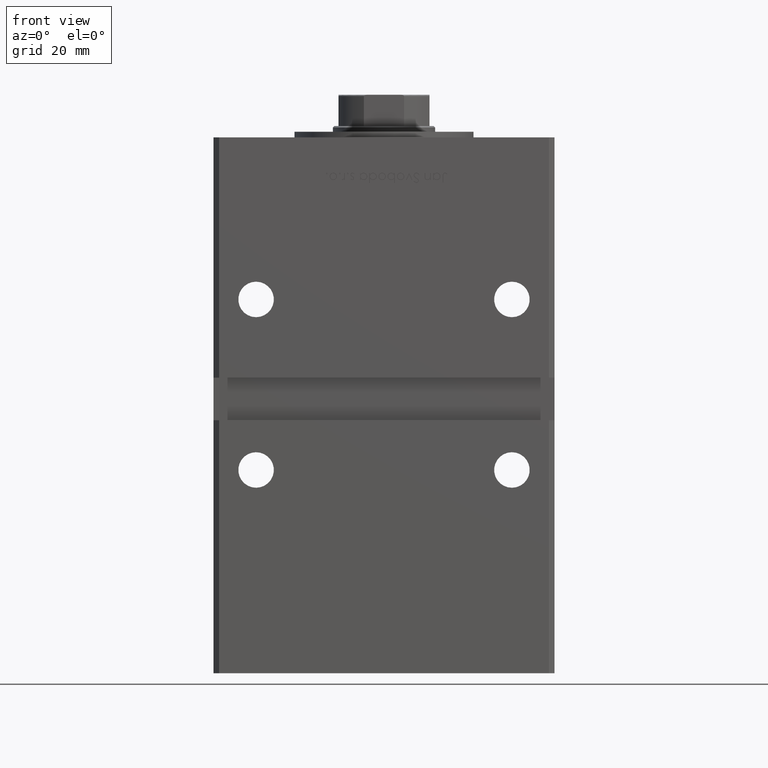
[diagram: clean part render]
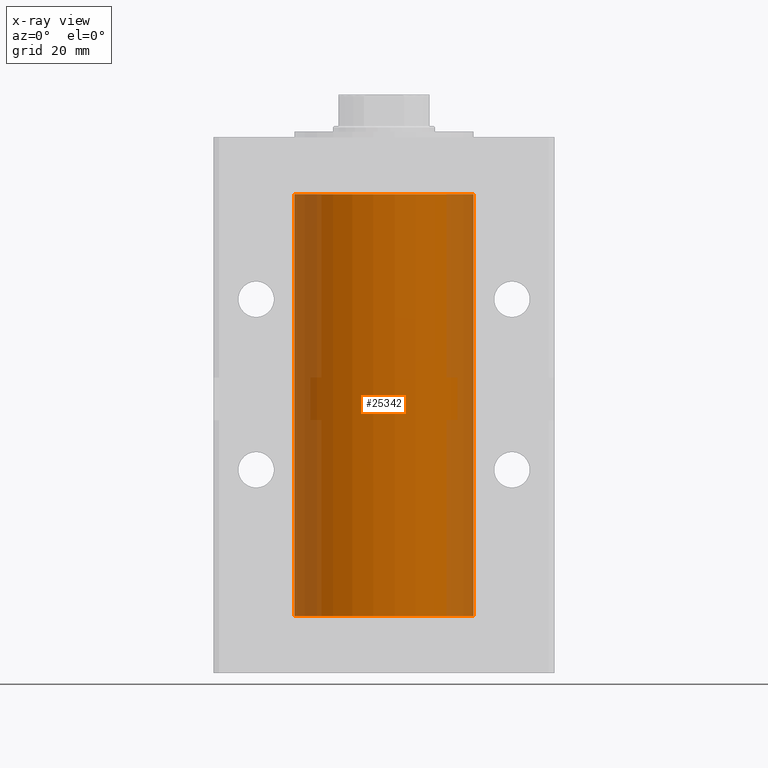
[diagram: x-ray — body ghosted, one internal face saturated and labeled with its STEP entity id]
A machine part, front view, then the same camera in x-ray: the body is ghosted and one INTERNAL B-rep face — a face not visible from any outside direction — is saturated and labeled: STEP entity #25342.
In plain terms, the highlighted cylindrical surface (partial cylindrical patch) has radius 31.5 mm, axis along (-0, -0, -1).
Its self-contained STEP definition (entity closure, byte-faithful):
#1123 = LINE ( 'NONE', #49970, #50641 ) ;
#2420 = DIRECTION ( 'NONE',  ( -0.000000000000000000, -0.000000000000000000, -1.000000000000000000 ) ) ;
#3649 = VECTOR ( 'NONE', #2420, 1000.000000000000000 ) ;
#4519 = DIRECTION ( 'NONE',  ( -0.000000000000000000, -0.000000000000000000, -1.000000000000000000 ) ) ;
#4679 = ORIENTED_EDGE ( 'NONE', *, *, #39320, .T. ) ;
#4877 = CARTESIAN_POINT ( 'NONE',  ( 0.000000000000000000, 0.000000000000000000, 0.000000000000000000 ) ) ;
#6239 = CIRCLE ( 'NONE', #52568, 31.50000000000000000 ) ;
#8638 = DIRECTION ( 'NONE',  ( 1.000000000000000000, 0.000000000000000000, 0.000000000000000000 ) ) ;
#8768 = EDGE_CURVE ( 'NONE', #26344, #41270, #1123, .T. ) ;
#11009 = EDGE_CURVE ( 'NONE', #52326, #26301, #34899, .T. ) ;
#13212 = DIRECTION ( 'NONE',  ( -0.000000000000000000, 0.000000000000000000, 1.000000000000000000 ) ) ;
#15736 = AXIS2_PLACEMENT_3D ( 'NONE', #4877, #36563, #52953 ) ;
#17375 = DIRECTION ( 'NONE',  ( -1.000000000000000000, 0.000000000000000000, 0.000000000000000000 ) ) ;
#19510 = ORIENTED_EDGE ( 'NONE', *, *, #11009, .T. ) ;
#21010 = CARTESIAN_POINT ( 'NONE',  ( 0.000000000000000000, 0.000000000000000000, 148.5000000000000000 ) ) ;
#21438 = CARTESIAN_POINT ( 'NONE',  ( 31.50000000000000000, 3.857637417314162689E-15, 0.000000000000000000 ) ) ;
#24679 = CARTESIAN_POINT ( 'NONE',  ( 0.000000000000000000, 0.000000000000000000, 148.5000000000000000 ) ) ;
#24948 = CYLINDRICAL_SURFACE ( 'NONE', #52230, 31.50000000000000000 ) ;
#25342 = ADVANCED_FACE ( 'NONE', ( #45828 ), #24948, .F. ) ;
#26301 = VERTEX_POINT ( 'NONE', #21438 ) ;
#26344 = VERTEX_POINT ( 'NONE', #41554 ) ;
#34899 = LINE ( 'NONE', #51274, #3649 ) ;
#34913 = ORIENTED_EDGE ( 'NONE', *, *, #8768, .F. ) ;
#36317 = CARTESIAN_POINT ( 'NONE',  ( -31.50000000000000000, 0.000000000000000000, 0.000000000000000000 ) ) ;
#36563 = DIRECTION ( 'NONE',  ( -0.000000000000000000, 0.000000000000000000, 1.000000000000000000 ) ) ;
#39320 = EDGE_CURVE ( 'NONE', #26344, #52326, #6239, .T. ) ;
#40177 = EDGE_CURVE ( 'NONE', #41270, #26301, #41439, .T. ) ;
#41270 = VERTEX_POINT ( 'NONE', #36317 ) ;
#41439 = CIRCLE ( 'NONE', #15736, 31.50000000000000000 ) ;
#41554 = CARTESIAN_POINT ( 'NONE',  ( -31.50000000000000000, 0.000000000000000000, 148.5000000000000000 ) ) ;
#43991 = CARTESIAN_POINT ( 'NONE',  ( 31.50000000000000000, 3.857637417314162689E-15, 148.5000000000000000 ) ) ;
#44859 = EDGE_LOOP ( 'NONE', ( #4679, #19510, #53080, #34913 ) ) ;
#45828 = FACE_OUTER_BOUND ( 'NONE', #44859, .T. ) ;
#46196 = DIRECTION ( 'NONE',  ( -0.000000000000000000, -0.000000000000000000, -1.000000000000000000 ) ) ;
#49970 = CARTESIAN_POINT ( 'NONE',  ( -31.50000000000000000, 0.000000000000000000, 148.5000000000000000 ) ) ;
#50641 = VECTOR ( 'NONE', #46196, 1000.000000000000000 ) ;
#51274 = CARTESIAN_POINT ( 'NONE',  ( 31.50000000000000000, 3.857637417314162689E-15, 148.5000000000000000 ) ) ;
#52230 = AXIS2_PLACEMENT_3D ( 'NONE', #24679, #4519, #17375 ) ;
#52326 = VERTEX_POINT ( 'NONE', #43991 ) ;
#52568 = AXIS2_PLACEMENT_3D ( 'NONE', #21010, #13212, #8638 ) ;
#52953 = DIRECTION ( 'NONE',  ( 1.000000000000000000, 0.000000000000000000, 0.000000000000000000 ) ) ;
#53080 = ORIENTED_EDGE ( 'NONE', *, *, #40177, .F. ) ;